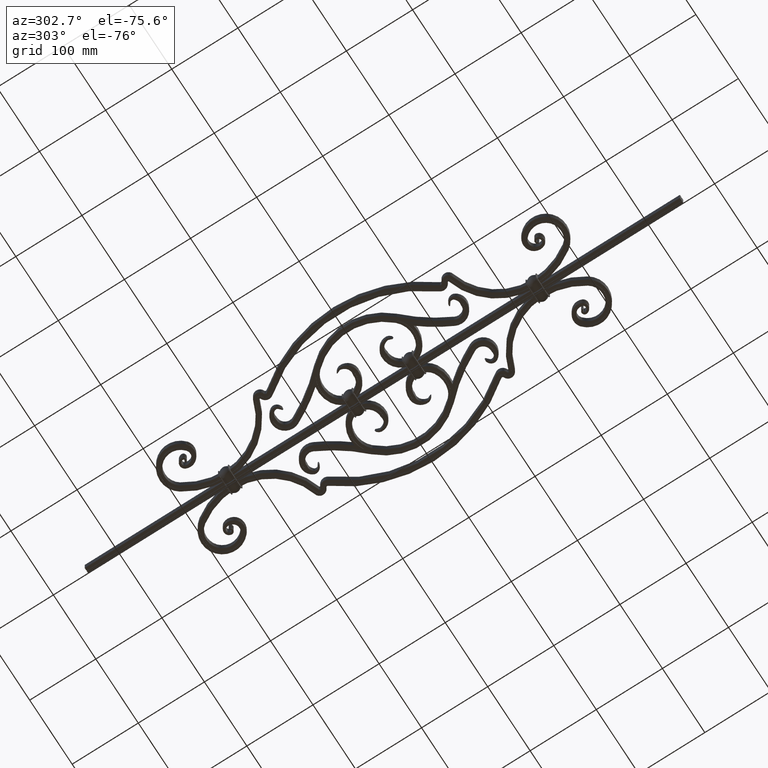
[diagram: clean part render]
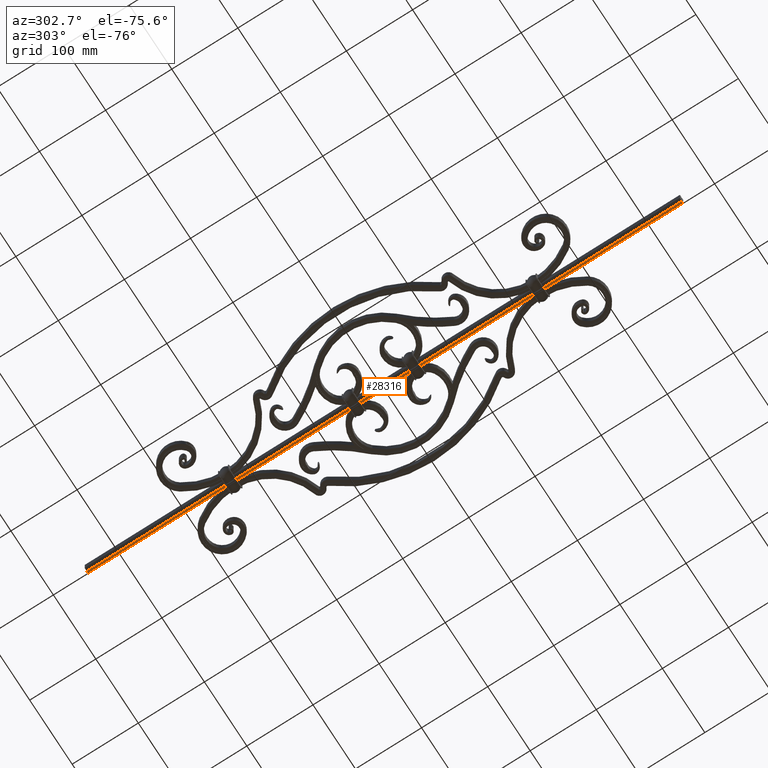
[diagram: same view with one face highlighted and labeled with its STEP entity id]
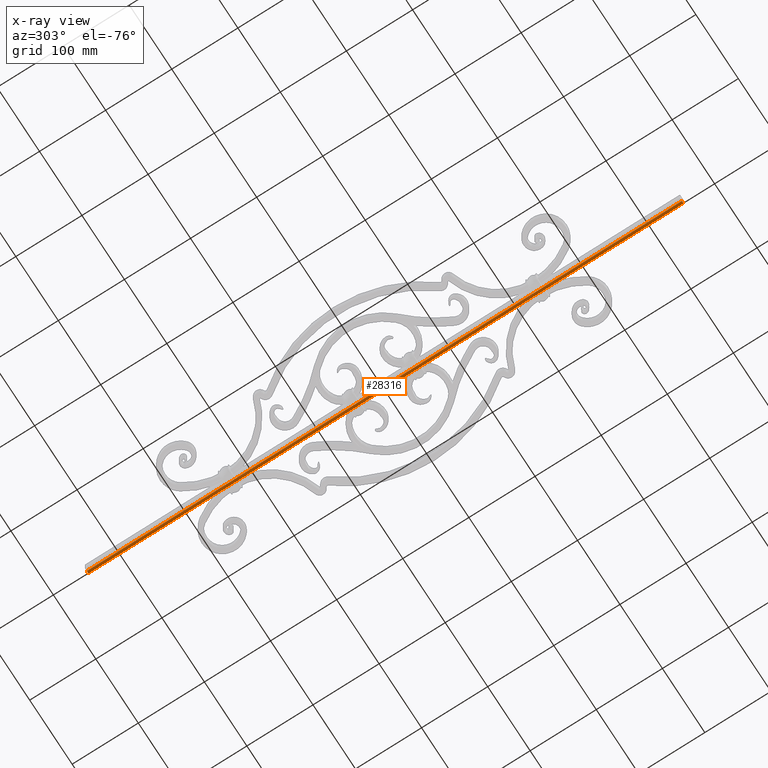
[diagram: x-ray of the same camera — body ghosted, the highlighted face saturated]
A machine part, auxiliary view. The second image highlights one B-rep face of the part: STEP entity #28316.
The next image is the same camera in x-ray: the body ghosted, the highlighted face saturated — about 0% of this face is hidden behind the body in this view.
In plain terms, the highlighted planar face has unit normal (0, 0, 1).
Its self-contained STEP definition (entity closure, byte-faithful):
#728 = CARTESIAN_POINT ( 'NONE',  ( 0.7500000000000000000, 450.0000000000000000, -8.000000000000000000 ) ) ;
#753 = CARTESIAN_POINT ( 'NONE',  ( -3.999999999999999100, 450.0000000000000000, -8.000000000000000000 ) ) ;
#2116 = LINE ( 'NONE', #27603, #32400 ) ;
#2925 = CARTESIAN_POINT ( 'NONE',  ( 4.000000000000000900, -450.0000000000000000, -8.000000000000000000 ) ) ;
#3186 = FACE_OUTER_BOUND ( 'NONE', #9239, .T. ) ;
#3230 = VECTOR ( 'NONE', #26088, 1000.000000000000000 ) ;
#3577 = PLANE ( 'NONE',  #25138 ) ;
#4122 = EDGE_CURVE ( 'NONE', #7538, #27325, #35874, .T. ) ;
#7538 = VERTEX_POINT ( 'NONE', #728 ) ;
#7653 = CARTESIAN_POINT ( 'NONE',  ( 4.000000000000000900, 450.0000000000000000, -8.000000000000000000 ) ) ;
#7748 = EDGE_CURVE ( 'NONE', #31816, #7538, #13810, .T. ) ;
#7753 = DIRECTION ( 'NONE',  ( -1.000000000000000000, -0.0000000000000000000, -0.0000000000000000000 ) ) ;
#8159 = EDGE_CURVE ( 'NONE', #35875, #27325, #11499, .T. ) ;
#8217 = CARTESIAN_POINT ( 'NONE',  ( 0.7500000000000000000, 450.0000000000000000, -8.000000000000000000 ) ) ;
#9239 = EDGE_LOOP ( 'NONE', ( #20212, #9588, #13709, #22679 ) ) ;
#9562 = CARTESIAN_POINT ( 'NONE',  ( -3.999999999999999100, 450.0000000000000000, -8.000000000000000000 ) ) ;
#9588 = ORIENTED_EDGE ( 'NONE', *, *, #4122, .F. ) ;
#11499 = LINE ( 'NONE', #35299, #3230 ) ;
#11567 = VECTOR ( 'NONE', #34124, 1000.000000000000000 ) ;
#13709 = ORIENTED_EDGE ( 'NONE', *, *, #7748, .F. ) ;
#13810 = LINE ( 'NONE', #9562, #28502 ) ;
#15367 = DIRECTION ( 'NONE',  ( 1.000000000000000000, 0.0000000000000000000, -0.0000000000000000000 ) ) ;
#15510 = EDGE_CURVE ( 'NONE', #31816, #35875, #2116, .T. ) ;
#20212 = ORIENTED_EDGE ( 'NONE', *, *, #8159, .T. ) ;
#22679 = ORIENTED_EDGE ( 'NONE', *, *, #15510, .T. ) ;
#25138 = AXIS2_PLACEMENT_3D ( 'NONE', #753, #27056, #15367 ) ;
#26088 = DIRECTION ( 'NONE',  ( -1.000000000000000000, -0.0000000000000000000, -0.0000000000000000000 ) ) ;
#27056 = DIRECTION ( 'NONE',  ( 0.0000000000000000000, 0.0000000000000000000, 1.000000000000000000 ) ) ;
#27325 = VERTEX_POINT ( 'NONE', #28126 ) ;
#27603 = CARTESIAN_POINT ( 'NONE',  ( 4.000000000000000900, 450.0000000000000000, -8.000000000000000000 ) ) ;
#28126 = CARTESIAN_POINT ( 'NONE',  ( 0.7500000000000000000, -450.0000000000000000, -8.000000000000000000 ) ) ;
#28316 = ADVANCED_FACE ( 'NONE', ( #3186 ), #3577, .F. ) ;
#28502 = VECTOR ( 'NONE', #7753, 1000.000000000000000 ) ;
#31816 = VERTEX_POINT ( 'NONE', #7653 ) ;
#32400 = VECTOR ( 'NONE', #36170, 1000.000000000000000 ) ;
#34124 = DIRECTION ( 'NONE',  ( -0.0000000000000000000, -1.000000000000000000, -0.0000000000000000000 ) ) ;
#35299 = CARTESIAN_POINT ( 'NONE',  ( -3.999999999999999100, -450.0000000000000000, -8.000000000000000000 ) ) ;
#35874 = LINE ( 'NONE', #8217, #11567 ) ;
#35875 = VERTEX_POINT ( 'NONE', #2925 ) ;
#36170 = DIRECTION ( 'NONE',  ( -0.0000000000000000000, -1.000000000000000000, -0.0000000000000000000 ) ) ;